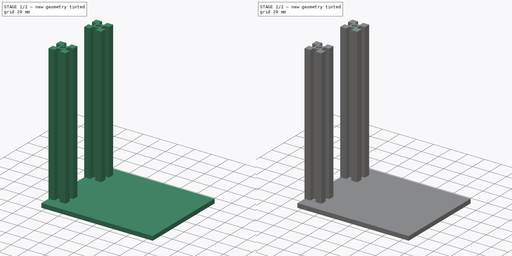
[diagram: build sequence overview — one tinted view per stage of 2, left to right]
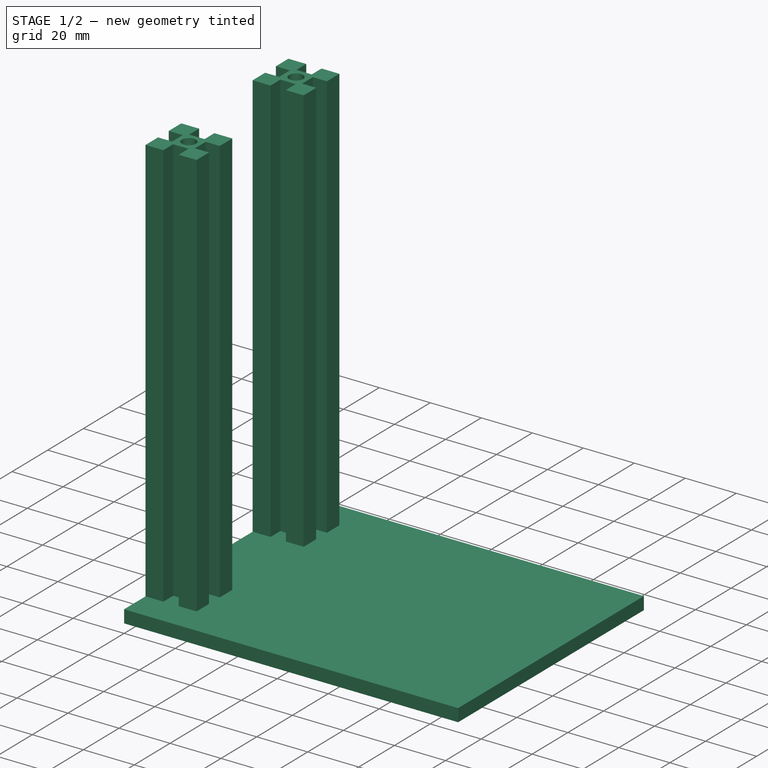
[diagram: stage 1 of 2 — iso view after this stage's code; geometry added in this stage tinted green]
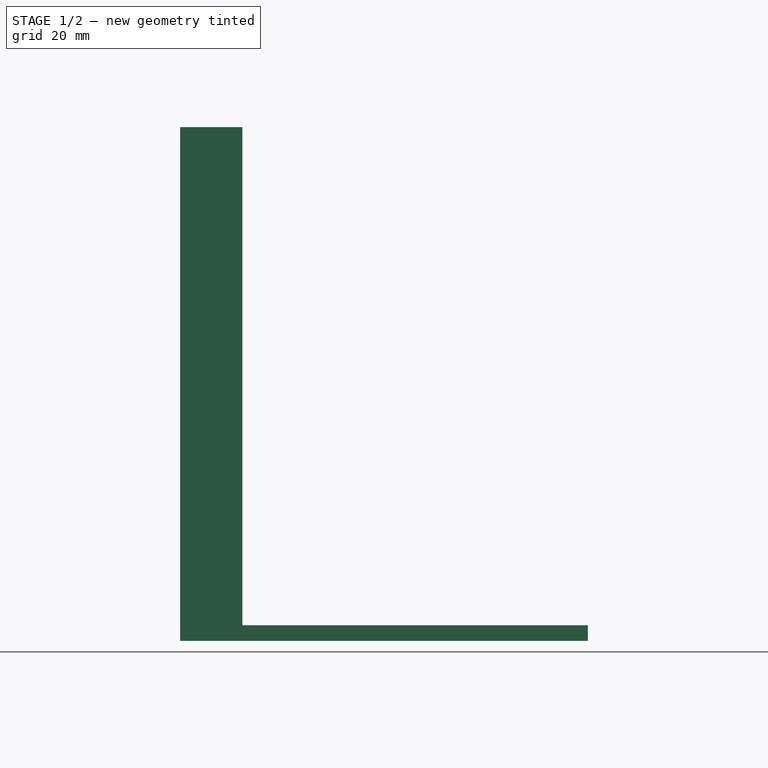
[diagram: stage 1 of 2 — front view after this stage's code; geometry added in this stage tinted green]
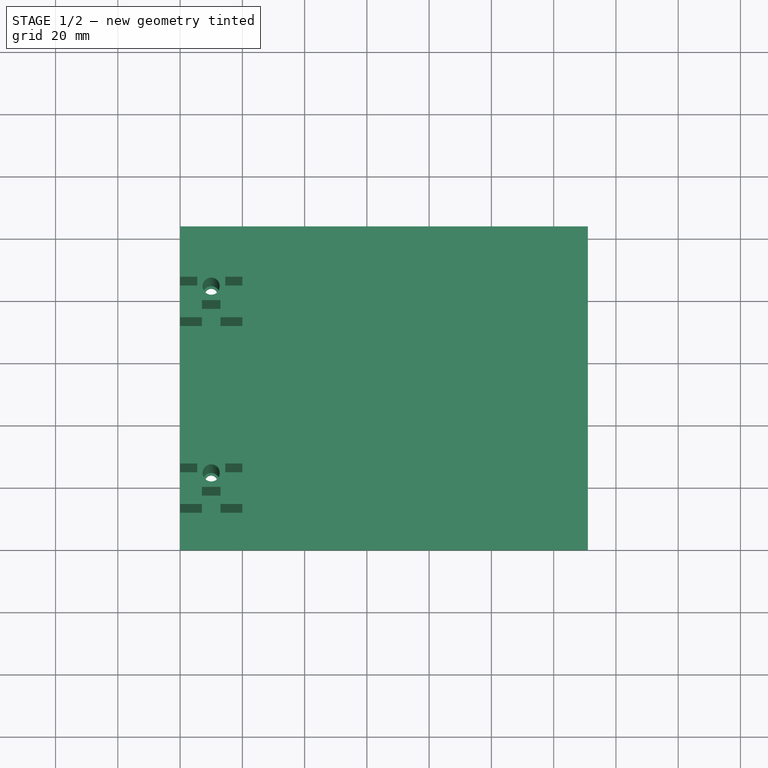
[diagram: stage 1 of 2 — top view after this stage's code; geometry added in this stage tinted green]
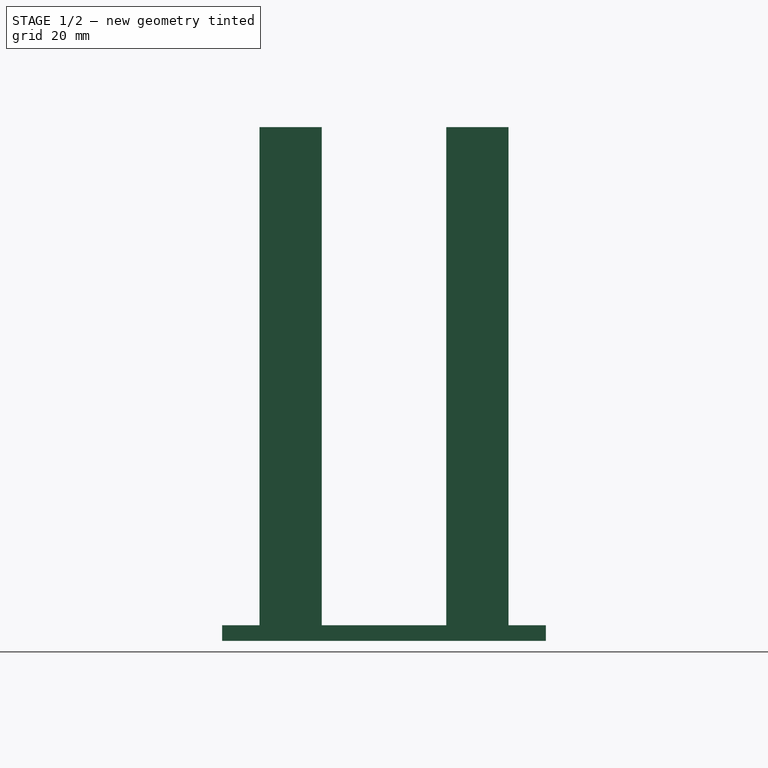
[diagram: stage 1 of 2 — right view after this stage's code; geometry added in this stage tinted green]
FCSTD DOCUMENT  (FreeCAD 0.16R5231 (Git))
Label: BuildPlatform_100x100
License: All rights reserved
LicenseURL: http://en.wikipedia.org/wiki/All_rights_reserved
objects: Sketcher::SketchObject×2, PartDesign::Pad×2, Part::Feature×2, Part::MultiFuse×1
note: 9 computed .brp shape members not serialized (recipe doc carries the construction recipe); baked Part::Feature solids carry a one-line shape summary decoded from their .brp

FEATURE [Sketcher::SketchObject] Sketch
  sketch-geometry (9):
    g0: LineSegment StartX=0 StartY=104 StartZ=0 EndX=131 EndY=104 EndZ=0
    g1: LineSegment StartX=131 StartY=104 StartZ=0 EndX=131 EndY=0 EndZ=0
    g2: LineSegment StartX=131 StartY=0 StartZ=0 EndX=0 EndY=0 EndZ=0
    g3: LineSegment StartX=0 StartY=0 StartZ=0 EndX=0 EndY=104 EndZ=0
    g4: Circle CenterX=10 CenterY=22 CenterZ=0 NormalX=0 NormalY=0 NormalZ=1 Radius=2
    g5: Circle CenterX=10 CenterY=82 CenterZ=0 NormalX=0 NormalY=0 NormalZ=1 Radius=2
    g6: LineSegment [constr] StartX=10 StartY=22 StartZ=0 EndX=10 EndY=82 EndZ=0
    g7: LineSegment [constr] StartX=10 StartY=82 StartZ=0 EndX=10 EndY=104 EndZ=0
    g8: LineSegment [constr] StartX=10 StartY=22 StartZ=0 EndX=10 EndY=0 EndZ=0
  constraints (25):
    c: Coincident(g0,g1)
    c: Coincident(g1,g2)
    c: Coincident(g2,g3)
    c: Coincident(g3,g0)
    c: Horizontal(g0)
    c: Horizontal(g2)
    c: Vertical(g1)
    c: Vertical(g3)
    c: DistanceX(g2) = -131
    c: Radius(g4) = 2
    c: Coincident(g2,g-1)
    c: DistanceX(g-1,g4) = 10
    c: Equal(g5,g4)
    c: DistanceY(g4,g5) = 60
    c: Coincident(g6,g4)
    c: Coincident(g6,g5)
    c: Vertical(g6)
    c: Coincident(g7,g5)
    c: PointOnObject(g7,g0)
    c: Vertical(g7)
    c: Coincident(g8,g4)
    c: PointOnObject(g8,g2)
    c: Vertical(g8)
    c: Equal(g8,g7)
    c: DistanceY(g0,g1) = -104
FEATURE [PartDesign::Pad] Pad  label="Pad006"
  Length = 5
  Length2 = 100
  Sketch = -> Sketch
  Type = 0
FEATURE [Part::Feature] Pocket007  label="20x20x160 Profile001"
  Placement = pos=(0,12,5) rot=(0,0,1;0rad)
  shape: bbox 20 x 20 x 160 mm, 23 faces (baked)
FEATURE [Part::Feature] Pocket008  label="20x20x160 Profile002"
  Placement = pos=(0,72,5) rot=(0,0,1;0rad)
  shape: bbox 20 x 20 x 160 mm, 23 faces (baked)
FEATURE [Part::MultiFuse] Fusion  label="BuildPlatform_100x100"
  Shapes = -> [Pad,Pocket007,Pocket008]
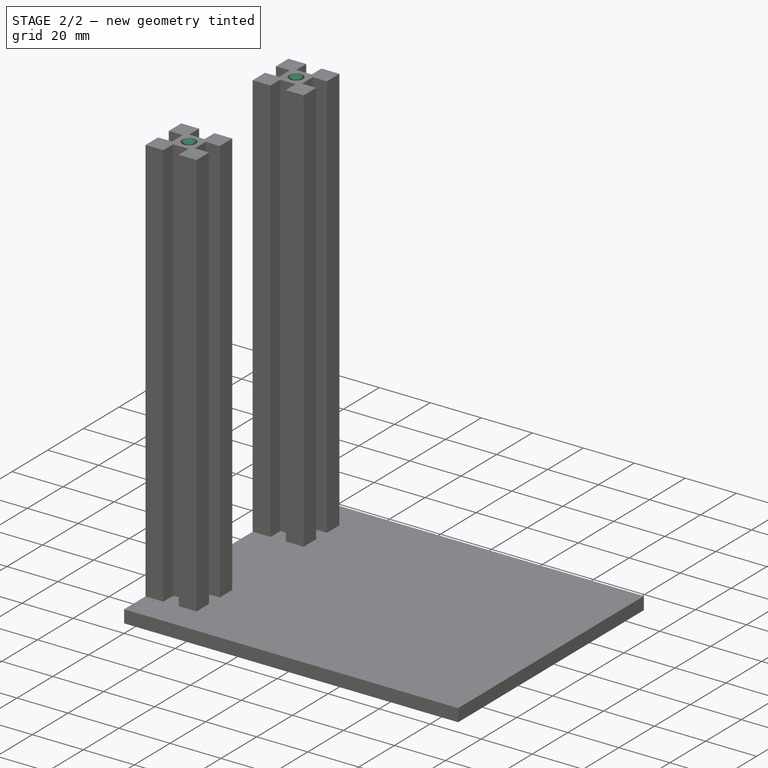
[diagram: stage 2 of 2 — iso view after this stage's code; geometry added in this stage tinted green]
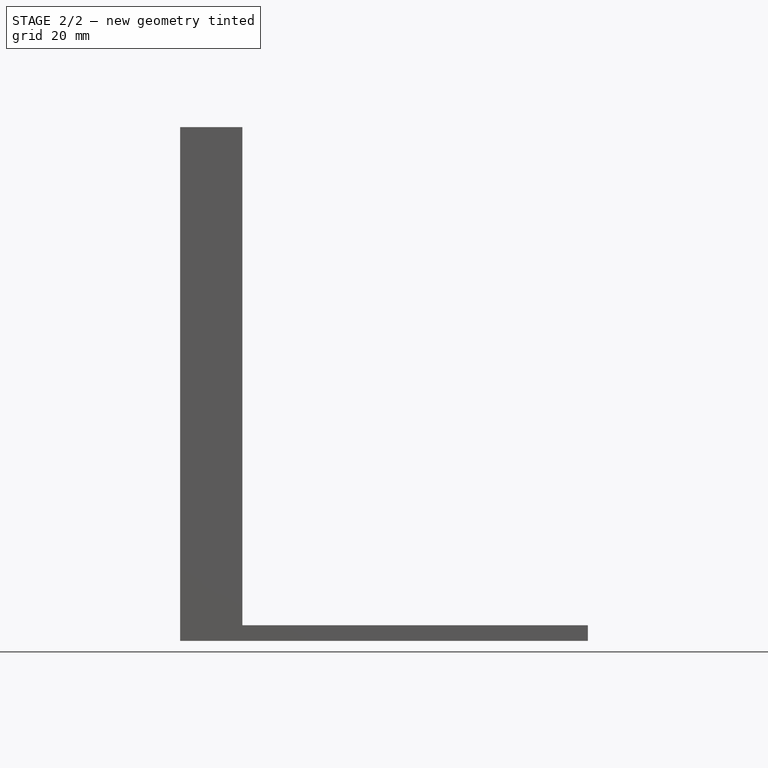
[diagram: stage 2 of 2 — front view after this stage's code; geometry added in this stage tinted green]
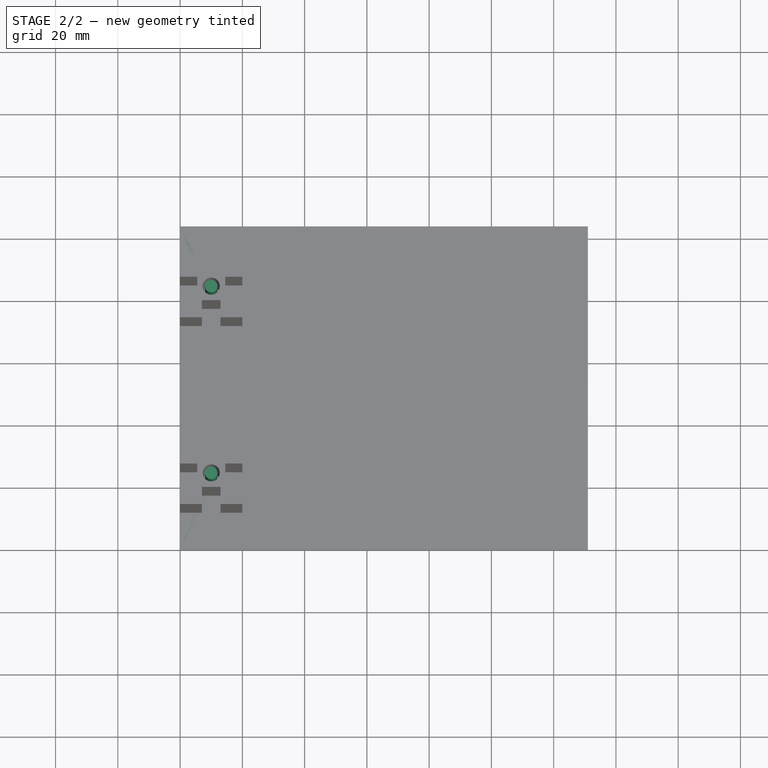
[diagram: stage 2 of 2 — top view after this stage's code; geometry added in this stage tinted green]
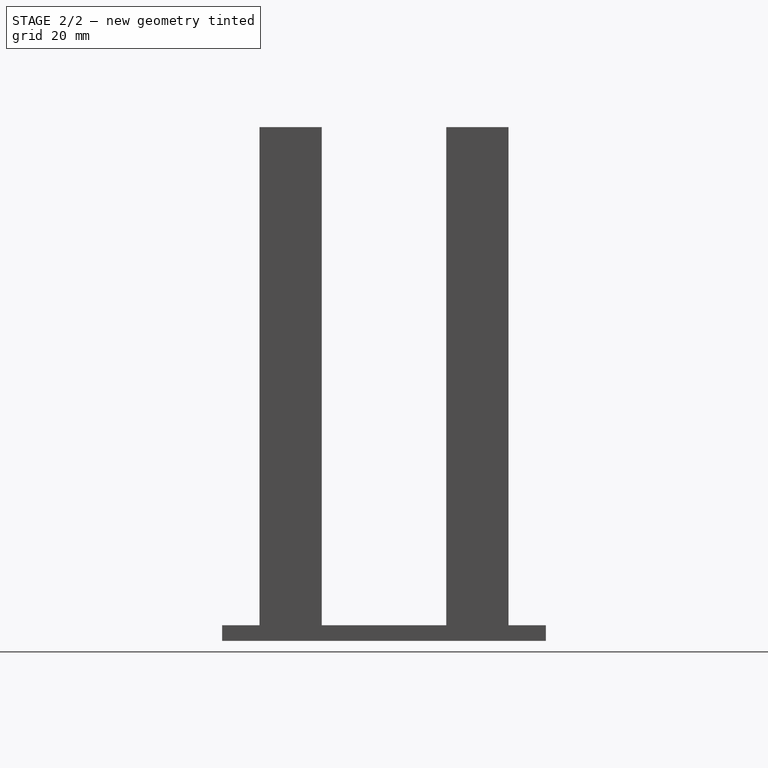
[diagram: stage 2 of 2 — right view after this stage's code; geometry added in this stage tinted green]
FEATURE [Sketcher::SketchObject] Sketch006
  ExternalGeometry = -> [Pad]
  Placement = pos=(0,0,0) rot=(1,0,0;3.14159rad)
  Support = -> Pad [Face7]
  sketch-geometry (2):
    g0: Circle CenterX=10 CenterY=-82 CenterZ=0 NormalX=0 NormalY=0 NormalZ=1 Radius=2
    g1: Circle CenterX=10 CenterY=-22 CenterZ=0 NormalX=0 NormalY=0 NormalZ=1 Radius=2
  constraints (4):
    c: Coincident(g0,g-3)
    c: Coincident(g1,g-4)
    c: Equal(g-3,g0)
    c: Equal(g-4,g1)
FEATURE [PartDesign::Pad] Pad005  label="BuildPlatform_100x100 alt"
  Length = 165
  Length2 = 100
  Reversed = true
  Sketch = -> Sketch006
  Type = 0
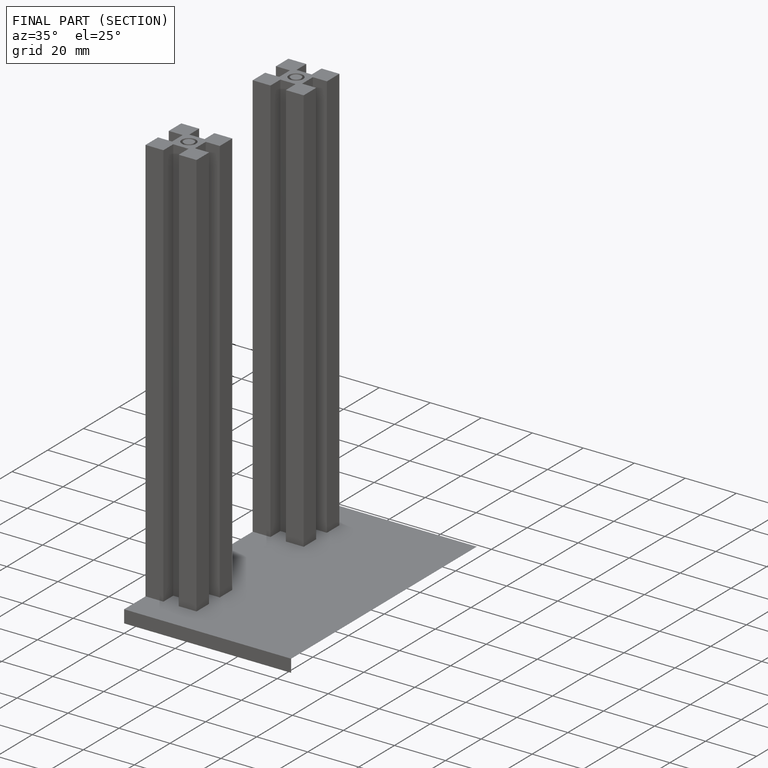
[diagram: finished part — half-section view (interior)]
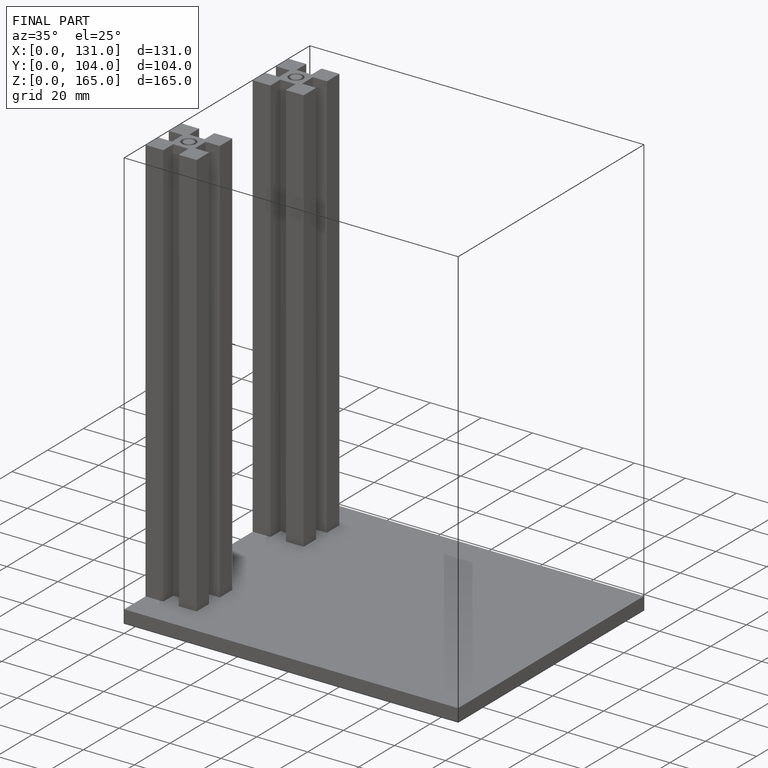
[diagram: finished part — iso view with bounding-box wireframe]
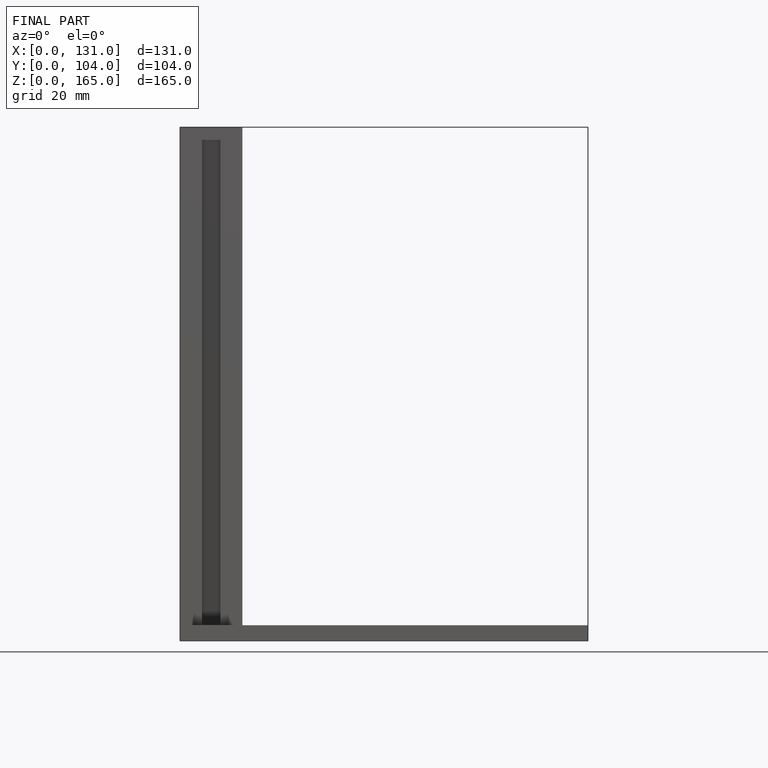
[diagram: finished part — front view with bounding-box wireframe]
